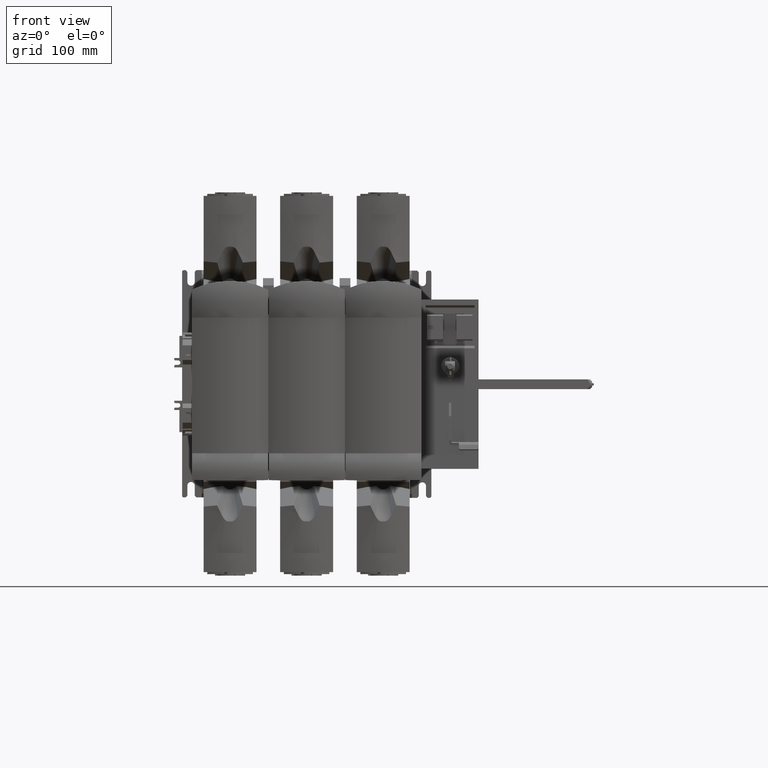
[diagram: clean part render]
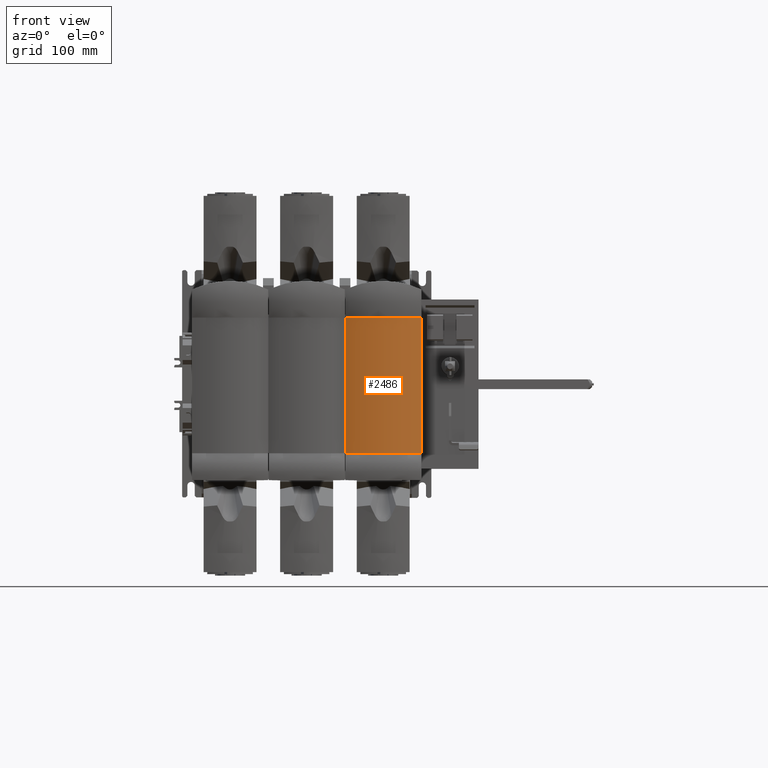
[diagram: same view with one face highlighted and labeled with its STEP entity id]
A machine part, front view. The second image highlights one B-rep face of the part: STEP entity #2486.
In plain terms, the highlighted cylindrical surface (partial cylindrical patch) has radius 115 mm, axis along (0, 0, -1).
Its self-contained STEP definition (entity closure, byte-faithful):
#812=CYLINDRICAL_SURFACE('',#58715,115.);
#1219=CIRCLE('',#58713,115.);
#1220=CIRCLE('',#58714,115.);
#2486=ADVANCED_FACE('',(#7969),#812,.T.);
#7969=FACE_OUTER_BOUND('',#10863,.T.);
#10863=EDGE_LOOP('',(#15042,#15043,#15044,#15045));
#15042=ORIENTED_EDGE('',*,*,#36587,.T.);
#15043=ORIENTED_EDGE('',*,*,#36588,.T.);
#15044=ORIENTED_EDGE('',*,*,#36589,.F.);
#15045=ORIENTED_EDGE('',*,*,#36590,.T.);
#30909=VERTEX_POINT('',#78404);
#30910=VERTEX_POINT('',#78405);
#30911=VERTEX_POINT('',#78407);
#30912=VERTEX_POINT('',#78409);
#36587=EDGE_CURVE('',#30909,#30910,#44728,.T.);
#36588=EDGE_CURVE('',#30910,#30911,#1219,.T.);
#36589=EDGE_CURVE('',#30912,#30911,#44729,.T.);
#36590=EDGE_CURVE('',#30912,#30909,#1220,.T.);
#44728=LINE('',#78403,#51792);
#44729=LINE('',#78408,#51793);
#51792=VECTOR('',#63070,1.);
#51793=VECTOR('',#63073,1.);
#58713=AXIS2_PLACEMENT_3D('',#78406,#63071,#63072);
#58714=AXIS2_PLACEMENT_3D('',#78410,#63074,#63075);
#58715=AXIS2_PLACEMENT_3D('',#78411,#63076,#63077);
#63070=DIRECTION('',(0.,0.,1.));
#63071=DIRECTION('',(0.,0.,-1.));
#63072=DIRECTION('',(-1.,0.,0.));
#63073=DIRECTION('',(0.,0.,1.));
#63074=DIRECTION('',(0.,0.,1.));
#63075=DIRECTION('',(-1.,0.,0.));
#63076=DIRECTION('',(0.,0.,-1.));
#63077=DIRECTION('',(-1.,0.,0.));
#78403=CARTESIAN_POINT('',(-4086.7500000002,-508.411096444053,89.3473605703458));
#78404=CARTESIAN_POINT('',(-4086.7500000002,-508.411096444049,-77.1499999999977));
#78405=CARTESIAN_POINT('',(-4086.7500000002,-508.411096444053,89.3473605703458));
#78406=CARTESIAN_POINT('',(-4133.40000000001,-403.297931236178,89.3473605703458));
#78407=CARTESIAN_POINT('',(-4180.05000000019,-508.411096443887,89.3473605703458));
#78408=CARTESIAN_POINT('',(-4180.05000000019,-508.411096443887,89.3473605703458));
#78409=CARTESIAN_POINT('',(-4180.05000000019,-508.411096443889,-77.1500000000104));
#78410=CARTESIAN_POINT('',(-4133.40000000001,-403.297931236178,-77.1500000000075));
#78411=CARTESIAN_POINT('',(-4133.40000000001,-403.297931236178,89.3473605703458));